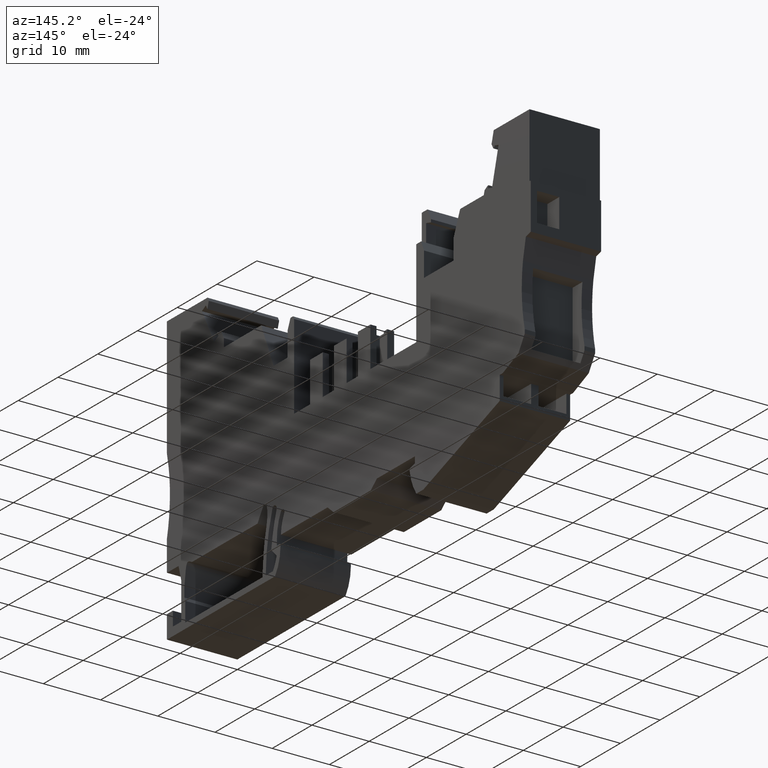
[diagram: clean part render]
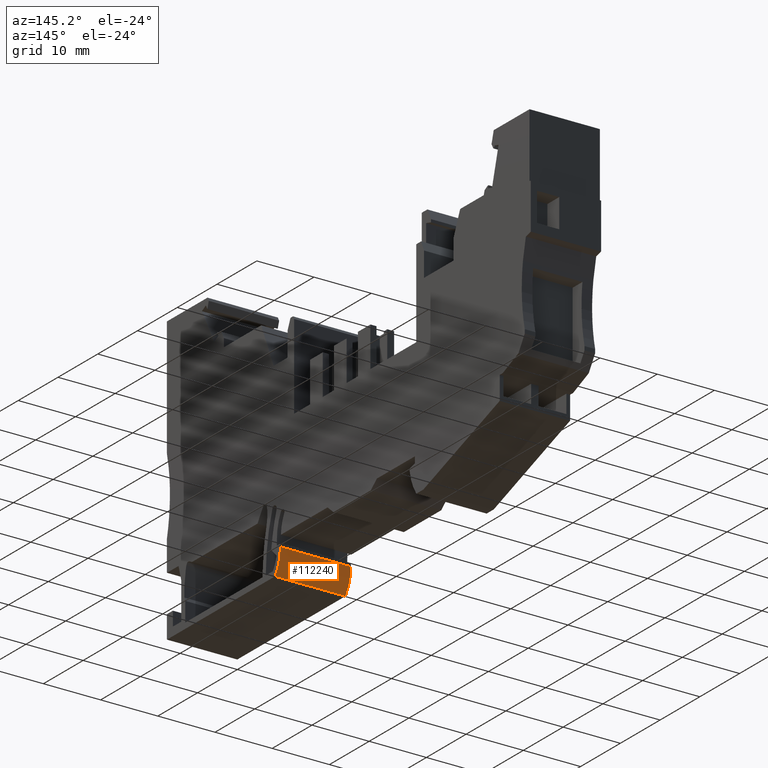
[diagram: same view with one face highlighted and labeled with its STEP entity id]
A machine part, auxiliary view. The second image highlights one B-rep face of the part: STEP entity #112240.
In plain terms, the highlighted cylindrical surface (partial cylindrical patch) has radius 7 mm, axis along (1, 0, 0).
Its self-contained STEP definition (entity closure, byte-faithful):
#10230=CARTESIAN_POINT('',(18.0422919051823,-19.6564659966308,-6.15));
#10240=VERTEX_POINT('',#10230);
#10270=CARTESIAN_POINT('',(25.0422919051823,-19.6564659966308,
-6.15000030413101));
#10280=DIRECTION('',(-2.76409465618456E-30,2.78809917608406E-14,-1.));
#10290=DIRECTION('',(-1.11134712543759E-12,1.,2.78791571475182E-14));
#10300=AXIS2_PLACEMENT_3D('',#10270,#10280,#10290);
#10310=CIRCLE('',#10300,7.);
#10320=CARTESIAN_POINT('',(19.4003838978744,-23.8,-6.15));
#10330=VERTEX_POINT('',#10320);
#10340=EDGE_CURVE('',#10330,#10240,#10310,.T.);
#12600=CARTESIAN_POINT('',(25.0422919051823,-19.6564659966311,
6.15000000000014));
#12610=DIRECTION('',(-2.76409465618456E-30,2.78809917608406E-14,-1.));
#12620=DIRECTION('',(-1.11134712543759E-12,1.,2.78791571475182E-14));
#12630=AXIS2_PLACEMENT_3D('',#12600,#12610,#12620);
#12640=CIRCLE('',#12630,7.);
#12650=CARTESIAN_POINT('',(19.4003838978744,-23.8,6.15000000000002));
#12660=VERTEX_POINT('',#12650);
#12670=CARTESIAN_POINT('',(18.0422919051823,-19.6564659966311,
6.15000000000014));
#12680=VERTEX_POINT('',#12670);
#12690=EDGE_CURVE('',#12660,#12680,#12640,.T.);
#20270=CARTESIAN_POINT('',(19.4003838978744,-23.8000000000001,
6.15000000000002));
#20280=DIRECTION('',(-2.76409465618456E-30,2.78809917608406E-14,-1.));
#20290=VECTOR('',#20280,1.);
#20300=LINE('',#20270,#20290);
#20310=EDGE_CURVE('',#12660,#10330,#20300,.T.);
#112080=CARTESIAN_POINT('',(25.0422919051823,-19.6564659966311,
6.15000000000014));
#112090=DIRECTION('',(-2.76409465618456E-30,2.78809917608406E-14,-1.));
#112100=DIRECTION('',(-1.11134712543759E-12,1.,2.78791571475182E-14));
#112110=AXIS2_PLACEMENT_3D('',#112080,#112090,#112100);
#112120=CYLINDRICAL_SURFACE('',#112110,7.);
#112130=ORIENTED_EDGE('',*,*,#12690,.T.);
#112140=ORIENTED_EDGE('',*,*,#20310,.F.);
#112150=ORIENTED_EDGE('',*,*,#10340,.F.);
#112160=CARTESIAN_POINT('',(18.0422919051823,-19.6564659966311,
6.15000000000014));
#112170=DIRECTION('',(-2.76409465618456E-30,2.78809917608406E-14,-1.));
#112180=VECTOR('',#112170,1.);
#112190=LINE('',#112160,#112180);
#112200=EDGE_CURVE('',#12680,#10240,#112190,.T.);
#112210=ORIENTED_EDGE('',*,*,#112200,.T.);
#112220=EDGE_LOOP('',(#112210,#112150,#112140,#112130));
#112230=FACE_OUTER_BOUND('',#112220,.T.);
#112240=ADVANCED_FACE('',(#112230),#112120,.T.);